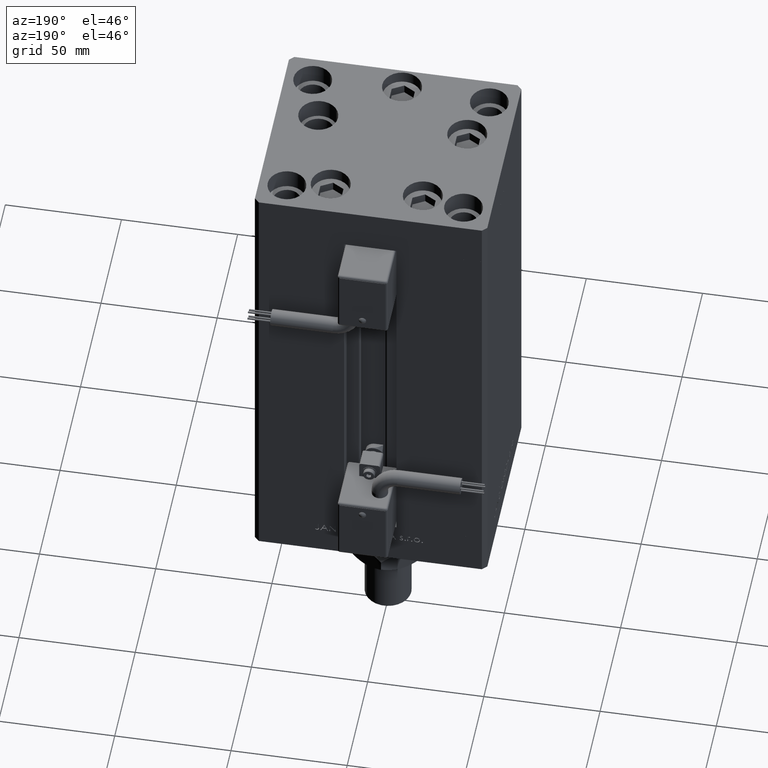
[diagram: clean part render]
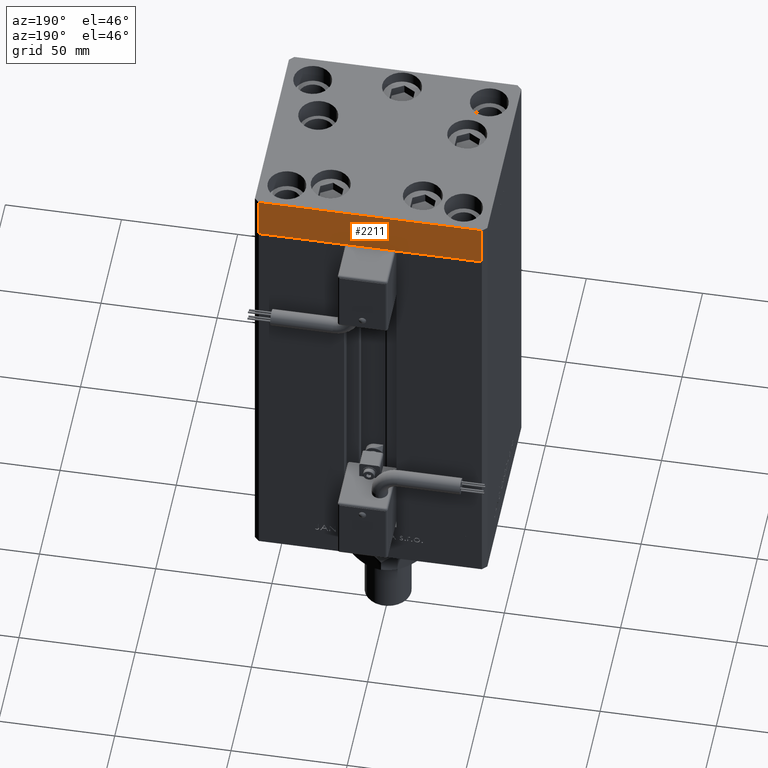
[diagram: same view with one face highlighted and labeled with its STEP entity id]
A machine part, auxiliary view. The second image highlights one B-rep face of the part: STEP entity #2211.
In plain terms, the highlighted planar face has unit normal (-0, 1, 0).
Its self-contained STEP definition (entity closure, byte-faithful):
#2129 = ORIENTED_EDGE ( 'NONE', *, *, #7835, .F. ) ;
#2211 = ADVANCED_FACE ( 'NONE', ( #2511 ), #41343, .T. ) ;
#2511 = FACE_OUTER_BOUND ( 'NONE', #40556, .T. ) ;
#2923 = VECTOR ( 'NONE', #28427, 1000.000000000000000 ) ;
#3105 = CARTESIAN_POINT ( 'NONE',  ( 47.99999999999990763, 43.50000000000000000, -19.00000000000000000 ) ) ;
#6287 = DIRECTION ( 'NONE',  ( 0.000000000000000000, 0.000000000000000000, 1.000000000000000000 ) ) ;
#7051 = CARTESIAN_POINT ( 'NONE',  ( -48.00000000000000711, 43.49999999999996447, 0.000000000000000000 ) ) ;
#7835 = EDGE_CURVE ( 'NONE', #11228, #17560, #23175, .T. ) ;
#8003 = CARTESIAN_POINT ( 'NONE',  ( -48.00000000000000711, 43.49999999999996447, -19.00000000000000000 ) ) ;
#11228 = VERTEX_POINT ( 'NONE', #11958 ) ;
#11737 = DIRECTION ( 'NONE',  ( -1.000000000000000000, -3.614007241618350743E-16, 0.000000000000000000 ) ) ;
#11958 = CARTESIAN_POINT ( 'NONE',  ( 47.99999999999990763, 43.50000000000000000, -19.00000000000000000 ) ) ;
#15126 = VECTOR ( 'NONE', #29911, 1000.000000000000000 ) ;
#17067 = ORIENTED_EDGE ( 'NONE', *, *, #41683, .T. ) ;
#17560 = VERTEX_POINT ( 'NONE', #31071 ) ;
#21828 = VECTOR ( 'NONE', #11737, 1000.000000000000000 ) ;
#23175 = LINE ( 'NONE', #43841, #47122 ) ;
#24868 = LINE ( 'NONE', #3105, #2923 ) ;
#28427 = DIRECTION ( 'NONE',  ( -1.000000000000000000, -3.614007241618350743E-16, 0.000000000000000000 ) ) ;
#29641 = CARTESIAN_POINT ( 'NONE',  ( -48.00000000000000711, 43.49999999999996447, -19.00000000000000000 ) ) ;
#29911 = DIRECTION ( 'NONE',  ( 0.000000000000000000, 0.000000000000000000, 1.000000000000000000 ) ) ;
#31071 = CARTESIAN_POINT ( 'NONE',  ( 47.99999999999990763, 43.50000000000000000, 0.000000000000000000 ) ) ;
#32803 = EDGE_CURVE ( 'NONE', #17560, #49364, #36798, .T. ) ;
#35441 = VERTEX_POINT ( 'NONE', #8003 ) ;
#36798 = LINE ( 'NONE', #53107, #21828 ) ;
#39784 = EDGE_CURVE ( 'NONE', #35441, #49364, #50834, .T. ) ;
#40556 = EDGE_LOOP ( 'NONE', ( #50478, #2129, #17067, #44688 ) ) ;
#41343 = PLANE ( 'NONE',  #45883 ) ;
#41683 = EDGE_CURVE ( 'NONE', #11228, #35441, #24868, .T. ) ;
#43841 = CARTESIAN_POINT ( 'NONE',  ( 47.99999999999990763, 43.50000000000000000, -19.00000000000000000 ) ) ;
#44688 = ORIENTED_EDGE ( 'NONE', *, *, #39784, .T. ) ;
#44876 = DIRECTION ( 'NONE',  ( -1.000000000000000000, -3.614007241618350743E-16, 0.000000000000000000 ) ) ;
#45883 = AXIS2_PLACEMENT_3D ( 'NONE', #53045, #49755, #44876 ) ;
#47122 = VECTOR ( 'NONE', #6287, 1000.000000000000000 ) ;
#49364 = VERTEX_POINT ( 'NONE', #7051 ) ;
#49755 = DIRECTION ( 'NONE',  ( -3.614007241618350743E-16, 1.000000000000000000, 0.000000000000000000 ) ) ;
#50478 = ORIENTED_EDGE ( 'NONE', *, *, #32803, .F. ) ;
#50834 = LINE ( 'NONE', #29641, #15126 ) ;
#53045 = CARTESIAN_POINT ( 'NONE',  ( 47.99999999999990763, 43.50000000000000000, -19.00000000000000000 ) ) ;
#53107 = CARTESIAN_POINT ( 'NONE',  ( 47.99999999999990763, 43.50000000000000000, 0.000000000000000000 ) ) ;